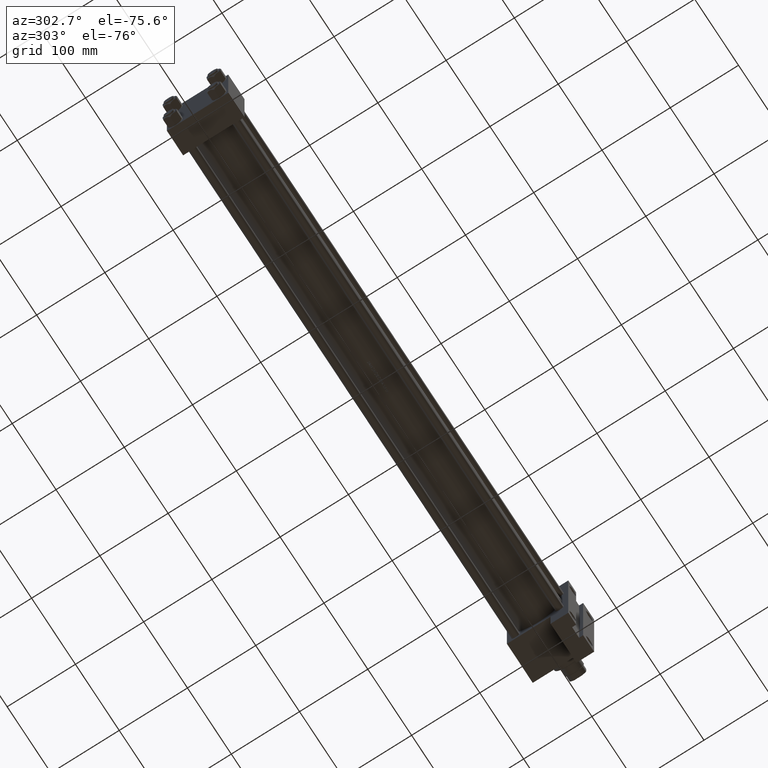
[diagram: clean part render]
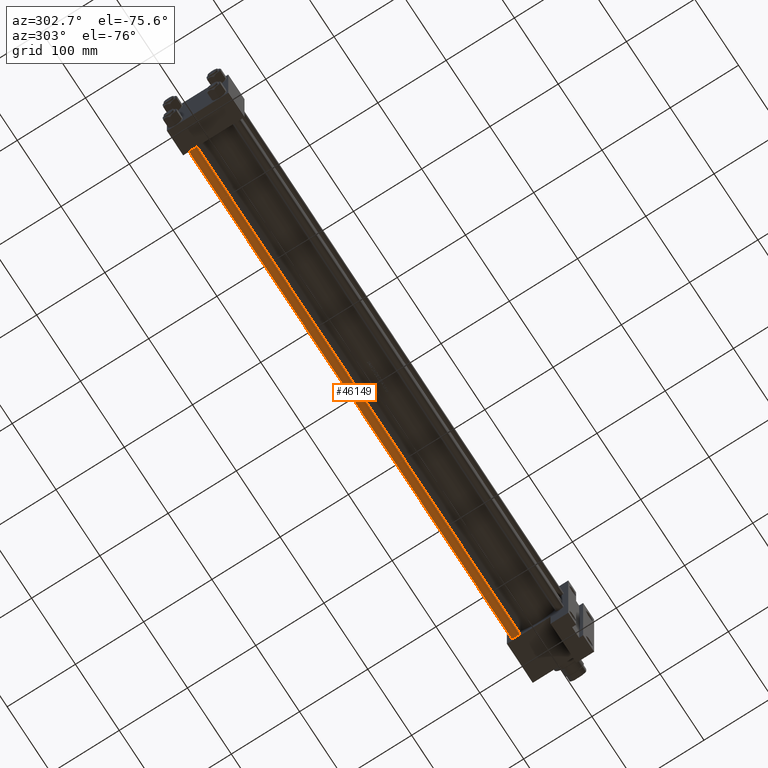
[diagram: same view with one face highlighted and labeled with its STEP entity id]
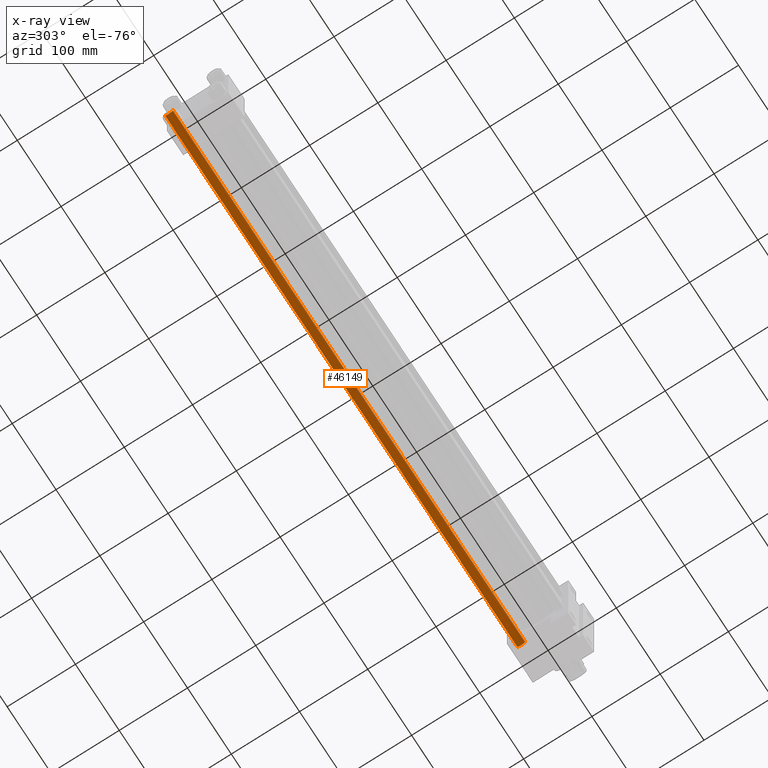
[diagram: x-ray of the same camera — body ghosted, the highlighted face saturated]
A machine part, auxiliary view. The second image highlights one B-rep face of the part: STEP entity #46149.
The next image is the same camera in x-ray: the body ghosted, the highlighted face saturated — about 0% of this face is hidden behind the body in this view.
In plain terms, the highlighted cylindrical surface (edge-blend (fillet) strip) has radius 6 mm, axis along (-1, -0, 0).
Its self-contained STEP definition (entity closure, byte-faithful):
#2093 = CYLINDRICAL_SURFACE ( 'NONE', #21255, 6.000000000000000888 ) ;
#4224 = VECTOR ( 'NONE', #6424, 1000.000000000000000 ) ;
#6424 = DIRECTION ( 'NONE',  ( -0.000000000000000000, -0.000000000000000000, -1.000000000000000000 ) ) ;
#6771 = DIRECTION ( 'NONE',  ( 1.000000000000000000, 0.000000000000000000, 0.000000000000000000 ) ) ;
#10498 = CARTESIAN_POINT ( 'NONE',  ( 6.000000000000000888, 7.347880794884120722E-16, 0.5000000000000559552 ) ) ;
#11377 = ORIENTED_EDGE ( 'NONE', *, *, #25154, .T. ) ;
#11501 = VERTEX_POINT ( 'NONE', #33735 ) ;
#11944 = EDGE_CURVE ( 'NONE', #26365, #18378, #35593, .T. ) ;
#15271 = CARTESIAN_POINT ( 'NONE',  ( -6.000000000000000888, 0.000000000000000000, 805.0000000000000000 ) ) ;
#15374 = AXIS2_PLACEMENT_3D ( 'NONE', #42077, #45697, #37967 ) ;
#16767 = DIRECTION ( 'NONE',  ( -0.000000000000000000, -0.000000000000000000, -1.000000000000000000 ) ) ;
#18378 = VERTEX_POINT ( 'NONE', #10498 ) ;
#21255 = AXIS2_PLACEMENT_3D ( 'NONE', #38948, #16767, #23976 ) ;
#21610 = CARTESIAN_POINT ( 'NONE',  ( -6.000000000000000888, 0.000000000000000000, 804.5000000000002274 ) ) ;
#21858 = VERTEX_POINT ( 'NONE', #21610 ) ;
#23976 = DIRECTION ( 'NONE',  ( -1.000000000000000000, 0.000000000000000000, 0.000000000000000000 ) ) ;
#25084 = DIRECTION ( 'NONE',  ( -0.000000000000000000, -0.000000000000000000, 1.000000000000000000 ) ) ;
#25154 = EDGE_CURVE ( 'NONE', #11501, #18378, #33779, .T. ) ;
#26365 = VERTEX_POINT ( 'NONE', #32732 ) ;
#27928 = EDGE_CURVE ( 'NONE', #26365, #21858, #36161, .T. ) ;
#28608 = ORIENTED_EDGE ( 'NONE', *, *, #45579, .T. ) ;
#29963 = LINE ( 'NONE', #15271, #38916 ) ;
#32732 = CARTESIAN_POINT ( 'NONE',  ( 6.000000000000000888, 7.347880794884120722E-16, 804.5000000000002274 ) ) ;
#33735 = CARTESIAN_POINT ( 'NONE',  ( -6.000000000000000888, 0.000000000000000000, 0.5000000000000559552 ) ) ;
#33779 = CIRCLE ( 'NONE', #47658, 6.000000000000000888 ) ;
#34869 = CARTESIAN_POINT ( 'NONE',  ( 6.000000000000000888, 7.347880794884120722E-16, 805.0000000000000000 ) ) ;
#35593 = LINE ( 'NONE', #34869, #4224 ) ;
#36161 = CIRCLE ( 'NONE', #15374, 6.000000000000000888 ) ;
#37920 = DIRECTION ( 'NONE',  ( -0.000000000000000000, -0.000000000000000000, -1.000000000000000000 ) ) ;
#37967 = DIRECTION ( 'NONE',  ( 1.000000000000000000, 0.000000000000000000, 0.000000000000000000 ) ) ;
#38916 = VECTOR ( 'NONE', #37920, 1000.000000000000000 ) ;
#38948 = CARTESIAN_POINT ( 'NONE',  ( 0.000000000000000000, 0.000000000000000000, 805.0000000000000000 ) ) ;
#42077 = CARTESIAN_POINT ( 'NONE',  ( 0.000000000000000000, 0.000000000000000000, 804.5000000000002274 ) ) ;
#42634 = ORIENTED_EDGE ( 'NONE', *, *, #11944, .F. ) ;
#42758 = ORIENTED_EDGE ( 'NONE', *, *, #27928, .T. ) ;
#45579 = EDGE_CURVE ( 'NONE', #21858, #11501, #29963, .T. ) ;
#45697 = DIRECTION ( 'NONE',  ( 0.000000000000000000, 0.000000000000000000, -1.000000000000000000 ) ) ;
#46149 = ADVANCED_FACE ( 'NONE', ( #46898 ), #2093, .T. ) ;
#46336 = CARTESIAN_POINT ( 'NONE',  ( 0.000000000000000000, 0.000000000000000000, 0.5000000000000559552 ) ) ;
#46898 = FACE_OUTER_BOUND ( 'NONE', #46962, .T. ) ;
#46962 = EDGE_LOOP ( 'NONE', ( #42634, #42758, #28608, #11377 ) ) ;
#47658 = AXIS2_PLACEMENT_3D ( 'NONE', #46336, #25084, #6771 ) ;